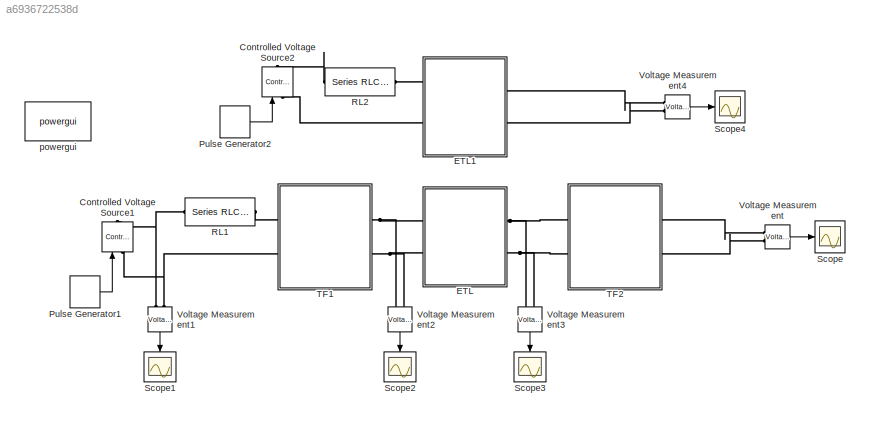
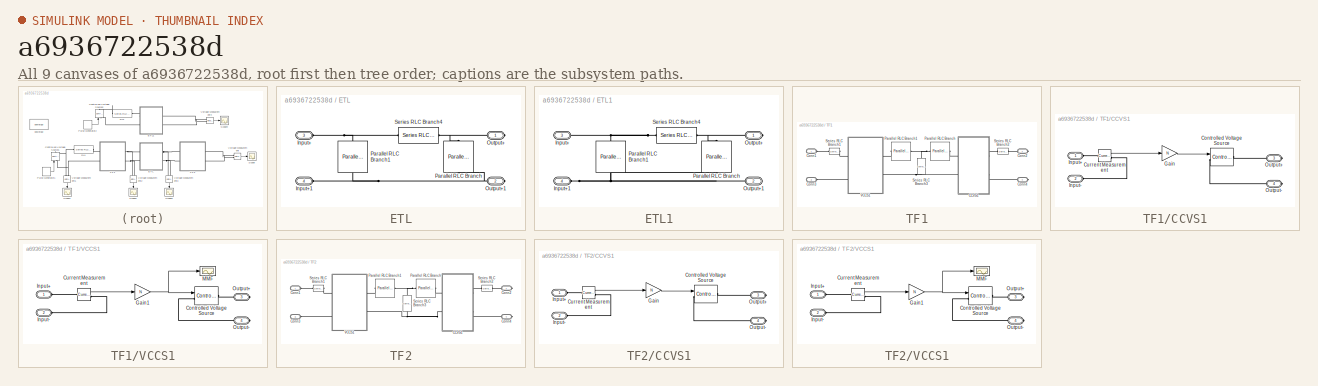
[diagram: thumbnail index - all 9 canvases of the model, root first then tree order]
MODEL slx_a6936722538d
KIND model
BLOCK [Reference] Controlled Voltage Source1  REF=powerlib/Electrical
Sources/Controlled Voltage Source
  Amplitude = 0
  Frequency = 0
  Initialize = on
  Measurements = None
  Phase = 0
  Ports = [1, 0, 0, 0, 0, 1, 1]
  SourceBlock = powerlib/Electrical\nSources/Controlled Voltage Source
  SourceType = Controlled Voltage Source
  Source_Type = AC
BLOCK [Reference] Controlled Voltage Source2  REF=powerlib/Electrical
Sources/Controlled Voltage Source
  Amplitude = 0
  Frequency = 0
  Initialize = on
  Measurements = None
  Phase = 0
  Ports = [1, 0, 0, 0, 0, 1, 1]
  SourceBlock = powerlib/Electrical\nSources/Controlled Voltage Source
  SourceType = Controlled Voltage Source
  Source_Type = AC
BLOCK [SubSystem] ETL
  FunctionWithSeparateData = off
  MaskHideContents = off
  MinAlgLoopOccurrences = off
  Opaque = off
  Ports = [0, 0, 0, 0, 0, 2, 2]
  PropExecContextOutsideSubsystem = off
  RTWSystemCode = Auto
  RequestExecContextInheritance = off
BLOCK [PMIOPort] ETL/Input+
  Port = 3
  Side = Left
BLOCK [PMIOPort] ETL/Input+1
  Port = 4
  Side = Left
BLOCK [PMIOPort] ETL/Output+
  Port = 1
  Side = Right
BLOCK [PMIOPort] ETL/Output+1
  Port = 2
  Side = Right
BLOCK [Reference] ETL/Parallel RLC Branch  REF=powerlib/Elements/Parallel RLC Branch
  AttributesFormatString = \n
  BranchType = C
  Capacitance = 4e-6
  Inductance = 1e-3
  InitialCurrent = 0
  InitialVoltage = 0
  LConnTagsString = a
  Measurements = None
  Ports = [0, 0, 0, 0, 0, 1, 1]
  RConnTagsString = __new0
  Resistance = 1
  SetiL0 = off
  Setx0 = off
  SourceBlock = powerlib/Elements/Parallel RLC Branch
  SourceType = Parallel RLC Branch
BLOCK [Reference] ETL/Parallel RLC Branch1  REF=powerlib/Elements/Parallel RLC Branch
  AttributesFormatString = \n
  BranchType = C
  Capacitance = 4e-6
  Inductance = 1e-3
  InitialCurrent = 0
  InitialVoltage = 0
  LConnTagsString = a
  Measurements = None
  Ports = [0, 0, 0, 0, 0, 1, 1]
  RConnTagsString = __new0
  Resistance = 1
  SetiL0 = off
  Setx0 = off
  SourceBlock = powerlib/Elements/Parallel RLC Branch
  SourceType = Parallel RLC Branch
BLOCK [Reference] ETL/Series RLC Branch4  REF=powerlib/Elements/Series RLC Branch
  BranchType = RL
  Capacitance = 1e-6
  Inductance = 0.3
  InitialCurrent = 0
  InitialVoltage = 0
  LConnTagsString = __new0
  Measurements = None
  Ports = [0, 0, 0, 0, 0, 1, 1]
  RConnTagsString = __new0
  Resistance = 4
  SetiL0 = off
  Setx0 = off
  SourceBlock = powerlib/Elements/Series RLC Branch
  SourceType = Series RLC Branch
BLOCK [SubSystem] ETL1
  FunctionWithSeparateData = off
  MaskHideContents = off
  MinAlgLoopOccurrences = off
  Opaque = off
  Ports = [0, 0, 0, 0, 0, 2, 2]
  PropExecContextOutsideSubsystem = off
  RTWSystemCode = Auto
  RequestExecContextInheritance = off
BLOCK [PMIOPort] ETL1/Input+
  Port = 3
  Side = Left
BLOCK [PMIOPort] ETL1/Input+1
  Port = 4
  Side = Left
BLOCK [PMIOPort] ETL1/Output+
  Port = 1
  Side = Right
BLOCK [PMIOPort] ETL1/Output+1
  Port = 2
  Side = Right
BLOCK [Reference] ETL1/Parallel RLC Branch  REF=powerlib/Elements/Parallel RLC Branch
  AttributesFormatString = \n
  BranchType = C
  Capacitance = 4e-6
  Inductance = 1e-3
  InitialCurrent = 0
  InitialVoltage = 0
  LConnTagsString = a
  Measurements = None
  Ports = [0, 0, 0, 0, 0, 1, 1]
  RConnTagsString = __new0
  Resistance = 1
  SetiL0 = off
  Setx0 = off
  SourceBlock = powerlib/Elements/Parallel RLC Branch
  SourceType = Parallel RLC Branch
BLOCK [Reference] ETL1/Parallel RLC Branch1  REF=powerlib/Elements/Parallel RLC Branch
  AttributesFormatString = \n
  BranchType = C
  Capacitance = 4e-6
  Inductance = 1e-3
  InitialCurrent = 0
  InitialVoltage = 0
  LConnTagsString = a
  Measurements = None
  Ports = [0, 0, 0, 0, 0, 1, 1]
  RConnTagsString = __new0
  Resistance = 1
  SetiL0 = off
  Setx0 = off
  SourceBlock = powerlib/Elements/Parallel RLC Branch
  SourceType = Parallel RLC Branch
BLOCK [Reference] ETL1/Series RLC Branch4  REF=powerlib/Elements/Series RLC Branch
  BranchType = RL
  Capacitance = 1e-6
  Inductance = 0.3
  InitialCurrent = 0
  InitialVoltage = 0
  LConnTagsString = __new0
  Measurements = None
  Ports = [0, 0, 0, 0, 0, 1, 1]
  RConnTagsString = __new0
  Resistance = 4
  SetiL0 = off
  Setx0 = off
  SourceBlock = powerlib/Elements/Series RLC Branch
  SourceType = Series RLC Branch
BLOCK [DiscretePulseGenerator] Pulse Generator1
  Amplitude = 220*sqrt(2)
  Period = 1/50
  Ports = [0, 1]
  PulseType = Time based
  PulseWidth = 50
BLOCK [DiscretePulseGenerator] Pulse Generator2
  Amplitude = 220*sqrt(2)
  Period = 1/50
  Ports = [0, 1]
  PulseType = Time based
  PulseWidth = 50
BLOCK [Reference] RL1  REF=powerlib/Elements/Series RLC Branch
  BranchType = R
  Capacitance = 1e-6
  Inductance = 1e-5
  InitialCurrent = 0
  InitialVoltage = 0
  LConnTagsString = __new0
  Measurements = None
  Ports = [0, 0, 0, 0, 0, 1, 1]
  RConnTagsString = __new0
  Resistance = 10
  SetiL0 = off
  Setx0 = off
  SourceBlock = powerlib/Elements/Series RLC Branch
  SourceType = Series RLC Branch
BLOCK [Reference] RL2  REF=powerlib/Elements/Series RLC Branch
  BranchType = R
  Capacitance = 1e-6
  Inductance = 1e-5
  InitialCurrent = 0
  InitialVoltage = 0
  LConnTagsString = __new0
  Measurements = None
  Ports = [0, 0, 0, 0, 0, 1, 1]
  RConnTagsString = __new0
  Resistance = 10
  SetiL0 = off
  Setx0 = off
  SourceBlock = powerlib/Elements/Series RLC Branch
  SourceType = Series RLC Branch
BLOCK [Scope] Scope
  DataFormat = StructureWithTime
  Floating = off
  LimitDataPoints = off
  NumInputPorts = 1
  Ports = [1]
  SampleTime = 0
  ShowLegends = off
  YMax = 210000
  YMin = 115000
  ZoomMode = xonly
BLOCK [Scope] Scope1
  DataFormat = StructureWithTime
  Floating = off
  LimitDataPoints = off
  NumInputPorts = 1
  Ports = [1]
  SampleTime = 0
  SaveName = ScopeData2
  ShowLegends = off
  YMax = 325
  YMin = 0
  ZoomMode = xonly
BLOCK [Scope] Scope2
  DataFormat = StructureWithTime
  Floating = off
  LimitDataPoints = off
  NumInputPorts = 1
  Ports = [1]
  SampleTime = 0
  SaveName = ScopeData1
  ShowLegends = off
  YMax = 400
  YMin = 0
  ZoomMode = yonly
BLOCK [Scope] Scope3
  DataFormat = StructureWithTime
  Floating = off
  LimitDataPoints = off
  NumInputPorts = 1
  Ports = [1]
  SampleTime = 0
  SaveName = ScopeData3
  ShowLegends = off
  YMax = 205
  YMin = 125
  ZoomMode = yonly
BLOCK [Scope] Scope4
  DataFormat = StructureWithTime
  Floating = off
  LimitDataPoints = off
  NumInputPorts = 1
  Ports = [1]
  SampleTime = 0
  SaveName = ScopeData4
  ShowLegends = off
  YMax = 1300
  YMin = -1000
  ZoomMode = xonly
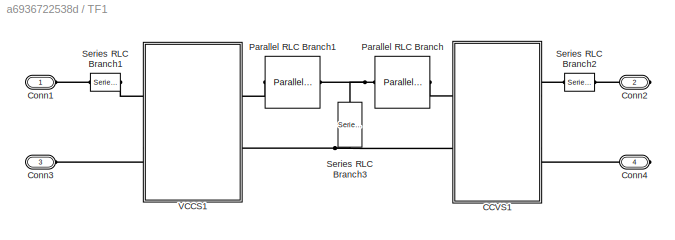
BLOCK [SubSystem] TF1
  FunctionWithSeparateData = off
  MaskHideContents = off
  MinAlgLoopOccurrences = off
  Opaque = off
  Ports = [0, 0, 0, 0, 0, 2, 2]
  PropExecContextOutsideSubsystem = off
  RTWSystemCode = Auto
  RequestExecContextInheritance = off
BLOCK [SubSystem] TF1/CCVS1
  FunctionWithSeparateData = off
  MaskHideContents = off
  MinAlgLoopOccurrences = off
  Opaque = off
  Ports = [0, 0, 0, 0, 0, 2, 2]
  PropExecContextOutsideSubsystem = off
  RTWSystemCode = Auto
  RequestExecContextInheritance = off
BLOCK [Reference] TF1/CCVS1/Controlled Voltage Source  REF=powerlib/Electrical
Sources/Controlled Voltage Source
  Amplitude = 0
  Frequency = 0
  Initialize = on
  Measurements = None
  Phase = 0
  Ports = [1, 0, 0, 0, 0, 1, 1]
  SourceBlock = powerlib/Electrical\nSources/Controlled Voltage Source
  SourceType = Controlled Voltage Source
  Source_Type = AC
BLOCK [Reference] TF1/CCVS1/Current Measurement  REF=powerlib/Measurements/Current Measurement
  OutputType = Complex
  PSBequivalent = 0
  PhasorSimulation = off
  Ports = [0, 1, 0, 0, 0, 1, 1]
  SourceBlock = powerlib/Measurements/Current Measurement
  SourceType = Current Measurement
BLOCK [Gain] TF1/CCVS1/Gain
  Gain = N
  OutDataTypeStr = Inherit: Inherit via internal rule
  ParamDataTypeStr = Inherit: Inherit via internal rule
  SaturateOnIntegerOverflow = off
BLOCK [PMIOPort] TF1/CCVS1/Input+
  Port = 1
  Side = Left
BLOCK [PMIOPort] TF1/CCVS1/Input-
  Port = 2
  Side = Left
BLOCK [PMIOPort] TF1/CCVS1/Output+
  Port = 3
  Side = Right
BLOCK [PMIOPort] TF1/CCVS1/Output-
  Port = 4
  Side = Right
BLOCK [PMIOPort] TF1/Conn1
  Port = 1
  Side = Left
BLOCK [PMIOPort] TF1/Conn2
  Port = 2
  Side = Right
BLOCK [PMIOPort] TF1/Conn3
  Port = 3
  Side = Left
BLOCK [PMIOPort] TF1/Conn4
  Port = 4
  Side = Right
BLOCK [Reference] TF1/Parallel RLC Branch  REF=powerlib/Elements/Parallel RLC Branch
  AttributesFormatString = \n
  BranchType = RL
  Capacitance = 1e-6
  Inductance = 1e-4
  InitialCurrent = 0
  InitialVoltage = 0
  LConnTagsString = a
  Measurements = None
  Ports = [0, 0, 0, 0, 0, 1, 1]
  RConnTagsString = __new0
  Resistance = 1e4
  SetiL0 = off
  Setx0 = off
  SourceBlock = powerlib/Elements/Parallel RLC Branch
  SourceType = Parallel RLC Branch
BLOCK [Reference] TF1/Parallel RLC Branch1  REF=powerlib/Elements/Parallel RLC Branch
  AttributesFormatString = \n
  BranchType = RL
  Capacitance = 1e-6
  Inductance = 1e-4
  InitialCurrent = 0
  InitialVoltage = 0
  LConnTagsString = a
  Measurements = None
  Ports = [0, 0, 0, 0, 0, 1, 1]
  RConnTagsString = __new0
  Resistance = 1e4
  SetiL0 = off
  Setx0 = off
  SourceBlock = powerlib/Elements/Parallel RLC Branch
  SourceType = Parallel RLC Branch
BLOCK [Reference] TF1/Series RLC Branch1  REF=powerlib/Elements/Series RLC Branch
  BranchType = RL
  Capacitance = 1e-6
  Inductance = 1e-5
  InitialCurrent = 0
  InitialVoltage = 0
  LConnTagsString = __new0
  Measurements = None
  Ports = [0, 0, 0, 0, 0, 1, 1]
  RConnTagsString = __new0
  Resistance = .1
  SetiL0 = off
  Setx0 = off
  SourceBlock = powerlib/Elements/Series RLC Branch
  SourceType = Series RLC Branch
BLOCK [Reference] TF1/Series RLC Branch2  REF=powerlib/Elements/Series RLC Branch
  BranchType = RL
  Capacitance = 1e-6
  Inductance = 1e-5
  InitialCurrent = 0
  InitialVoltage = 0
  LConnTagsString = __new0
  Measurements = None
  Ports = [0, 0, 0, 0, 0, 1, 1]
  RConnTagsString = __new0
  Resistance = .1
  SetiL0 = off
  Setx0 = off
  SourceBlock = powerlib/Elements/Series RLC Branch
  SourceType = Series RLC Branch
BLOCK [Reference] TF1/Series RLC Branch3  REF=powerlib/Elements/Series RLC Branch
  BranchType = C
  Capacitance = 1e9
  Inductance = 1e-3
  InitialCurrent = 0
  InitialVoltage = 0
  LConnTagsString = __new0
  Measurements = None
  Ports = [0, 0, 0, 0, 0, 1, 1]
  RConnTagsString = __new0
  Resistance = 1
  SetiL0 = off
  Setx0 = off
  SourceBlock = powerlib/Elements/Series RLC Branch
  SourceType = Series RLC Branch
BLOCK [SubSystem] TF1/VCCS1
  FunctionWithSeparateData = off
  MaskHideContents = off
  MinAlgLoopOccurrences = off
  Opaque = off
  Ports = [0, 0, 0, 0, 0, 2, 2]
  PropExecContextOutsideSubsystem = off
  RTWSystemCode = Auto
  RequestExecContextInheritance = off
BLOCK [Reference] TF1/VCCS1/Controlled Voltage Source  REF=powerlib/Electrical
Sources/Controlled Voltage Source
  Amplitude = 0
  Frequency = 0
  Initialize = on
  Measurements = None
  Phase = 0
  Ports = [1, 0, 0, 0, 0, 1, 1]
  SourceBlock = powerlib/Electrical\nSources/Controlled Voltage Source
  SourceType = Controlled Voltage Source
  Source_Type = AC
BLOCK [Reference] TF1/VCCS1/Current Measurement  REF=powerlib/Measurements/Current Measurement
  OutputType = Complex
  PSBequivalent = 0
  PhasorSimulation = off
  Ports = [0, 1, 0, 0, 0, 1, 1]
  SourceBlock = powerlib/Measurements/Current Measurement
  SourceType = Current Measurement
BLOCK [Gain] TF1/VCCS1/Gain1
  Gain = N
  OutDataTypeStr = Inherit: Inherit via internal rule
  ParamDataTypeStr = Inherit: Inherit via internal rule
  SaturateOnIntegerOverflow = off
BLOCK [PMIOPort] TF1/VCCS1/Input+
  Port = 1
  Side = Left
BLOCK [PMIOPort] TF1/VCCS1/Input-
  Port = 2
  Side = Left
BLOCK [Scope] TF1/VCCS1/MMF
  DataFormat = StructureWithTime
  Floating = off
  NumInputPorts = 1
  Ports = [1]
  SampleTime = 0
  SaveName = ScopeData8
  ShowLegends = off
  YMax = 17500
  YMin = -2500
BLOCK [PMIOPort] TF1/VCCS1/Output+
  Port = 3
  Side = Right
BLOCK [PMIOPort] TF1/VCCS1/Output-
  Port = 4
  Side = Right
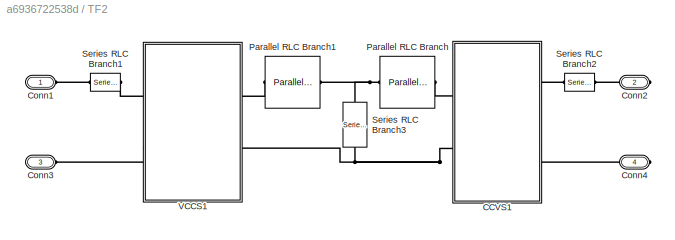
BLOCK [SubSystem] TF2
  FunctionWithSeparateData = off
  MaskHideContents = off
  MinAlgLoopOccurrences = off
  Opaque = off
  Ports = [0, 0, 0, 0, 0, 2, 2]
  PropExecContextOutsideSubsystem = off
  RTWSystemCode = Auto
  RequestExecContextInheritance = off
BLOCK [SubSystem] TF2/CCVS1
  FunctionWithSeparateData = off
  MaskHideContents = off
  MinAlgLoopOccurrences = off
  Opaque = off
  Ports = [0, 0, 0, 0, 0, 2, 2]
  PropExecContextOutsideSubsystem = off
  RTWSystemCode = Auto
  RequestExecContextInheritance = off
BLOCK [Reference] TF2/CCVS1/Controlled Voltage Source  REF=powerlib/Electrical
Sources/Controlled Voltage Source
  Amplitude = 0
  Frequency = 0
  Initialize = on
  Measurements = None
  Phase = 0
  Ports = [1, 0, 0, 0, 0, 1, 1]
  SourceBlock = powerlib/Electrical\nSources/Controlled Voltage Source
  SourceType = Controlled Voltage Source
  Source_Type = AC
BLOCK [Reference] TF2/CCVS1/Current Measurement  REF=powerlib/Measurements/Current Measurement
  OutputType = Complex
  PSBequivalent = 0
  PhasorSimulation = off
  Ports = [0, 1, 0, 0, 0, 1, 1]
  SourceBlock = powerlib/Measurements/Current Measurement
  SourceType = Current Measurement
BLOCK [Gain] TF2/CCVS1/Gain
  Gain = N
  OutDataTypeStr = Inherit: Inherit via internal rule
  ParamDataTypeStr = Inherit: Inherit via internal rule
  SaturateOnIntegerOverflow = off
BLOCK [PMIOPort] TF2/CCVS1/Input+
  Port = 1
  Side = Left
BLOCK [PMIOPort] TF2/CCVS1/Input-
  Port = 2
  Side = Left
BLOCK [PMIOPort] TF2/CCVS1/Output+
  Port = 3
  Side = Right
BLOCK [PMIOPort] TF2/CCVS1/Output-
  Port = 4
  Side = Right
BLOCK [PMIOPort] TF2/Conn1
  Port = 1
  Side = Left
BLOCK [PMIOPort] TF2/Conn2
  Port = 2
  Side = Right
BLOCK [PMIOPort] TF2/Conn3
  Port = 3
  Side = Left
BLOCK [PMIOPort] TF2/Conn4
  Port = 4
  Side = Right
BLOCK [Reference] TF2/Parallel RLC Branch  REF=powerlib/Elements/Parallel RLC Branch
  AttributesFormatString = \n
  BranchType = RL
  Capacitance = 1e-6
  Inductance = 1e-4
  InitialCurrent = 0
  InitialVoltage = 0
  LConnTagsString = a
  Measurements = None
  Ports = [0, 0, 0, 0, 0, 1, 1]
  RConnTagsString = __new0
  Resistance = 1e4
  SetiL0 = off
  Setx0 = off
  SourceBlock = powerlib/Elements/Parallel RLC Branch
  SourceType = Parallel RLC Branch
BLOCK [Reference] TF2/Parallel RLC Branch1  REF=powerlib/Elements/Parallel RLC Branch
  AttributesFormatString = \n
  BranchType = RL
  Capacitance = 1e-6
  Inductance = 1e-4
  InitialCurrent = 0
  InitialVoltage = 0
  LConnTagsString = a
  Measurements = None
  Ports = [0, 0, 0, 0, 0, 1, 1]
  RConnTagsString = __new0
  Resistance = 1e4
  SetiL0 = off
  Setx0 = off
  SourceBlock = powerlib/Elements/Parallel RLC Branch
  SourceType = Parallel RLC Branch
BLOCK [Reference] TF2/Series RLC Branch1  REF=powerlib/Elements/Series RLC Branch
  BranchType = RL
  Capacitance = 1e-6
  Inductance = 1e-5
  InitialCurrent = 0
  InitialVoltage = 0
  LConnTagsString = __new0
  Measurements = None
  Ports = [0, 0, 0, 0, 0, 1, 1]
  RConnTagsString = __new0
  Resistance = .1
  SetiL0 = off
  Setx0 = off
  SourceBlock = powerlib/Elements/Series RLC Branch
  SourceType = Series RLC Branch
BLOCK [Reference] TF2/Series RLC Branch2  REF=powerlib/Elements/Series RLC Branch
  BranchType = RL
  Capacitance = 1e-6
  Inductance = 1e-5
  InitialCurrent = 0
  InitialVoltage = 0
  LConnTagsString = __new0
  Measurements = None
  Ports = [0, 0, 0, 0, 0, 1, 1]
  RConnTagsString = __new0
  Resistance = .1
  SetiL0 = off
  Setx0 = off
  SourceBlock = powerlib/Elements/Series RLC Branch
  SourceType = Series RLC Branch
BLOCK [Reference] TF2/Series RLC Branch3  REF=powerlib/Elements/Series RLC Branch
  BranchType = C
  Capacitance = 1e9
  Inductance = 1e-3
  InitialCurrent = 0
  InitialVoltage = 0
  LConnTagsString = __new0
  Measurements = None
  Ports = [0, 0, 0, 0, 0, 1, 1]
  RConnTagsString = __new0
  Resistance = 1
  SetiL0 = off
  Setx0 = off
  SourceBlock = powerlib/Elements/Series RLC Branch
  SourceType = Series RLC Branch
BLOCK [SubSystem] TF2/VCCS1
  FunctionWithSeparateData = off
  MaskHideContents = off
  MinAlgLoopOccurrences = off
  Opaque = off
  Ports = [0, 0, 0, 0, 0, 2, 2]
  PropExecContextOutsideSubsystem = off
  RTWSystemCode = Auto
  RequestExecContextInheritance = off
BLOCK [Reference] TF2/VCCS1/Controlled Voltage Source  REF=powerlib/Electrical
Sources/Controlled Voltage Source
  Amplitude = 0
  Frequency = 0
  Initialize = on
  Measurements = None
  Phase = 0
  Ports = [1, 0, 0, 0, 0, 1, 1]
  SourceBlock = powerlib/Electrical\nSources/Controlled Voltage Source
  SourceType = Controlled Voltage Source
  Source_Type = AC
BLOCK [Reference] TF2/VCCS1/Current Measurement  REF=powerlib/Measurements/Current Measurement
  OutputType = Complex
  PSBequivalent = 0
  PhasorSimulation = off
  Ports = [0, 1, 0, 0, 0, 1, 1]
  SourceBlock = powerlib/Measurements/Current Measurement
  SourceType = Current Measurement
BLOCK [Gain] TF2/VCCS1/Gain1
  Gain = N
  OutDataTypeStr = Inherit: Inherit via internal rule
  ParamDataTypeStr = Inherit: Inherit via internal rule
  SaturateOnIntegerOverflow = off
BLOCK [PMIOPort] TF2/VCCS1/Input+
  Port = 1
  Side = Left
BLOCK [PMIOPort] TF2/VCCS1/Input-
  Port = 2
  Side = Left
BLOCK [Scope] TF2/VCCS1/MMF
  DataFormat = StructureWithTime
  Floating = off
  NumInputPorts = 1
  Ports = [1]
  SampleTime = 0
  SaveName = ScopeData8
  ShowLegends = off
  YMax = 17500
  YMin = -2500
BLOCK [PMIOPort] TF2/VCCS1/Output+
  Port = 3
  Side = Right
BLOCK [PMIOPort] TF2/VCCS1/Output-
  Port = 4
  Side = Right
BLOCK [Reference] Voltage Measurement  REF=powerlib/Measurements/Voltage Measurement
  OutputType = Complex
  PSBequivalent = 0
  PhasorSimulation = off
  Ports = [0, 1, 0, 0, 0, 2]
  SourceBlock = powerlib/Measurements/Voltage Measurement
  SourceType = Voltage Measurement
BLOCK [Reference] Voltage Measurement1  REF=powerlib/Measurements/Voltage Measurement
  OutputType = Complex
  PSBequivalent = 0
  PhasorSimulation = off
  Ports = [0, 1, 0, 0, 0, 2]
  SourceBlock = powerlib/Measurements/Voltage Measurement
  SourceType = Voltage Measurement
BLOCK [Reference] Voltage Measurement2  REF=powerlib/Measurements/Voltage Measurement
  OutputType = Complex
  PSBequivalent = 0
  PhasorSimulation = off
  Ports = [0, 1, 0, 0, 0, 2]
  SourceBlock = powerlib/Measurements/Voltage Measurement
  SourceType = Voltage Measurement
BLOCK [Reference] Voltage Measurement3  REF=powerlib/Measurements/Voltage Measurement
  OutputType = Complex
  PSBequivalent = 0
  PhasorSimulation = off
  Ports = [0, 1, 0, 0, 0, 2]
  SourceBlock = powerlib/Measurements/Voltage Measurement
  SourceType = Voltage Measurement
BLOCK [Reference] Voltage Measurement4  REF=powerlib/Measurements/Voltage Measurement
  OutputType = Complex
  PSBequivalent = 0
  PhasorSimulation = off
  Ports = [0, 1, 0, 0, 0, 2]
  SourceBlock = powerlib/Measurements/Voltage Measurement
  SourceType = Voltage Measurement
BLOCK [Reference] powergui  REF=powerlib/powergui
  DisableRonSwitches = off
  DisableSnubberDevices = off
  DisableVfSwitches = off
  DisplayEquations = off
  DisplayStyle = 1
  EnableUseOfTLC = off
  ErrMax = 1e-4
  Frange = [0:2:500]
  FreqAxis = off
  FunctionMessages = off
  HookPort = off
  Interpol = off
  Iterations = 50
  MaxFrequency = 1000
  Pbase = 100e6
  Ports = []
  Priority = 1
  ResistiveCurrentMeasurement = off
  RestoreLinks = warning
  RmsSteady = 1
  SPID = off
  SampleTime = 1e-6
  ShowGrid = off
  SolverType = Tustin
  SourceBlock = powerlib/powergui
  SourceType = PSB option menu block
  StartTime = 0.0
  SwTol = 0
  Ts = 0
  UnitsV = kV
  UnitsW = MW
  UserDataPersistent = on
  Xlog = on
  Ylog = off
  ZoomFFT = off
  cycles = 1
  display = off
  echomessages = off
  frequency = 60
  frequencyindice = 0
  frequencyindicesteady = 1
  fundamental = 60
  methode = off
  save = off
  variable = ZData
  x0status = blocks
LINE Pulse Generator1:1 -> Controlled Voltage Source1:1
LINE Pulse Generator2:1 -> Controlled Voltage Source2:1
LINE TF1/CCVS1/Current Measurement:1 -> TF1/CCVS1/Gain:1
LINE TF1/CCVS1/Gain:1 -> TF1/CCVS1/Controlled Voltage Source:1
LINE TF1/VCCS1/Current Measurement:1 -> TF1/VCCS1/Gain1:1
NET TF1/VCCS1/Gain1:1 -> TF1/VCCS1/Controlled Voltage Source:1, TF1/VCCS1/MMF:1
LINE TF2/CCVS1/Current Measurement:1 -> TF2/CCVS1/Gain:1
LINE TF2/CCVS1/Gain:1 -> TF2/CCVS1/Controlled Voltage Source:1
LINE TF2/VCCS1/Current Measurement:1 -> TF2/VCCS1/Gain1:1
NET TF2/VCCS1/Gain1:1 -> TF2/VCCS1/Controlled Voltage Source:1, TF2/VCCS1/MMF:1
LINE Voltage Measurement1:1 -> Scope1:1
LINE Voltage Measurement2:1 -> Scope2:1
LINE Voltage Measurement3:1 -> Scope3:1
LINE Voltage Measurement4:1 -> Scope4:1
LINE Voltage Measurement:1 -> Scope:1
PNET net1: Controlled Voltage Source1:LConn1 -- TF1:LConn2 -- Voltage Measurement1:LConn2
PNET net2: Controlled Voltage Source1:RConn1 -- RL1:LConn1 -- Voltage Measurement1:LConn1
PLINE Controlled Voltage Source2:LConn1 -- ETL1:LConn2
PLINE Controlled Voltage Source2:RConn1 -- RL2:LConn1
PNET net3: ETL/Input+1:RConn1 -- ETL/Output+1:RConn1 -- ETL/Parallel RLC Branch1:RConn1 -- ETL/Parallel RLC Branch:RConn1
PNET net4: ETL/Input+:RConn1 -- ETL/Parallel RLC Branch1:LConn1 -- ETL/Series RLC Branch4:LConn1
PNET net5: ETL/Output+:RConn1 -- ETL/Parallel RLC Branch:LConn1 -- ETL/Series RLC Branch4:RConn1
PNET net6: ETL1/Input+1:RConn1 -- ETL1/Output+1:RConn1 -- ETL1/Parallel RLC Branch1:RConn1 -- ETL1/Parallel RLC Branch:RConn1
PNET net7: ETL1/Input+:RConn1 -- ETL1/Parallel RLC Branch1:LConn1 -- ETL1/Series RLC Branch4:LConn1
PNET net8: ETL1/Output+:RConn1 -- ETL1/Parallel RLC Branch:LConn1 -- ETL1/Series RLC Branch4:RConn1
PLINE ETL1:LConn1 -- RL2:RConn1
PLINE ETL1:RConn1 -- Voltage Measurement4:LConn1
PLINE ETL1:RConn2 -- Voltage Measurement4:LConn2
PNET net9: ETL:LConn1 -- TF1:RConn1 -- Voltage Measurement2:LConn1
PNET net10: ETL:LConn2 -- TF1:RConn2 -- Voltage Measurement2:LConn2
PNET net11: ETL:RConn1 -- TF2:LConn1 -- Voltage Measurement3:LConn1
PNET net12: ETL:RConn2 -- TF2:LConn2 -- Voltage Measurement3:LConn2
PLINE RL1:RConn1 -- TF1:LConn1
PLINE TF1/CCVS1/Controlled Voltage Source:LConn1 -- TF1/CCVS1/Output-:RConn1
PLINE TF1/CCVS1/Controlled Voltage Source:RConn1 -- TF1/CCVS1/Output+:RConn1
PLINE TF1/CCVS1/Current Measurement:LConn1 -- TF1/CCVS1/Input+:RConn1
PLINE TF1/CCVS1/Current Measurement:RConn1 -- TF1/CCVS1/Input-:RConn1
PLINE TF1/CCVS1:LConn1 -- TF1/Parallel RLC Branch:RConn1
PNET net13: TF1/CCVS1:LConn2 -- TF1/Series RLC Branch3:RConn1 -- TF1/VCCS1:RConn2
PLINE TF1/CCVS1:RConn1 -- TF1/Series RLC Branch2:LConn1
PLINE TF1/CCVS1:RConn2 -- TF1/Conn4:RConn1
PLINE TF1/Conn1:RConn1 -- TF1/Series RLC Branch1:LConn1
PLINE TF1/Conn2:RConn1 -- TF1/Series RLC Branch2:RConn1
PLINE TF1/Conn3:RConn1 -- TF1/VCCS1:LConn2
PLINE TF1/Parallel RLC Branch1:LConn1 -- TF1/VCCS1:RConn1
PNET net14: TF1/Parallel RLC Branch1:RConn1 -- TF1/Parallel RLC Branch:LConn1 -- TF1/Series RLC Branch3:LConn1
PLINE TF1/Series RLC Branch1:RConn1 -- TF1/VCCS1:LConn1
PLINE TF1/VCCS1/Controlled Voltage Source:LConn1 -- TF1/VCCS1/Output-:RConn1
PLINE TF1/VCCS1/Controlled Voltage Source:RConn1 -- TF1/VCCS1/Output+:RConn1
PLINE TF1/VCCS1/Current Measurement:LConn1 -- TF1/VCCS1/Input+:RConn1
PLINE TF1/VCCS1/Current Measurement:RConn1 -- TF1/VCCS1/Input-:RConn1
PLINE TF2/CCVS1/Controlled Voltage Source:LConn1 -- TF2/CCVS1/Output-:RConn1
PLINE TF2/CCVS1/Controlled Voltage Source:RConn1 -- TF2/CCVS1/Output+:RConn1
PLINE TF2/CCVS1/Current Measurement:LConn1 -- TF2/CCVS1/Input+:RConn1
PLINE TF2/CCVS1/Current Measurement:RConn1 -- TF2/CCVS1/Input-:RConn1
PLINE TF2/CCVS1:LConn1 -- TF2/Parallel RLC Branch:RConn1
PNET net15: TF2/CCVS1:LConn2 -- TF2/Series RLC Branch3:RConn1 -- TF2/VCCS1:RConn2
PLINE TF2/CCVS1:RConn1 -- TF2/Series RLC Branch2:LConn1
PLINE TF2/CCVS1:RConn2 -- TF2/Conn4:RConn1
PLINE TF2/Conn1:RConn1 -- TF2/Series RLC Branch1:LConn1
PLINE TF2/Conn2:RConn1 -- TF2/Series RLC Branch2:RConn1
PLINE TF2/Conn3:RConn1 -- TF2/VCCS1:LConn2
PLINE TF2/Parallel RLC Branch1:LConn1 -- TF2/VCCS1:RConn1
PNET net16: TF2/Parallel RLC Branch1:RConn1 -- TF2/Parallel RLC Branch:LConn1 -- TF2/Series RLC Branch3:LConn1
PLINE TF2/Series RLC Branch1:RConn1 -- TF2/VCCS1:LConn1
PLINE TF2/VCCS1/Controlled Voltage Source:LConn1 -- TF2/VCCS1/Output-:RConn1
PLINE TF2/VCCS1/Controlled Voltage Source:RConn1 -- TF2/VCCS1/Output+:RConn1
PLINE TF2/VCCS1/Current Measurement:LConn1 -- TF2/VCCS1/Input+:RConn1
PLINE TF2/VCCS1/Current Measurement:RConn1 -- TF2/VCCS1/Input-:RConn1
PLINE TF2:RConn1 -- Voltage Measurement:LConn1
PLINE TF2:RConn2 -- Voltage Measurement:LConn2
note: NET lines group one-source signal fan-out (src -> all destinations, sorted); 1:1 wires keep LINE; PNET lines group multi-terminal physical nets as a canonical sorted terminal list (undirected conserving connections); 2-terminal nets keep the pairwise PLINE form
